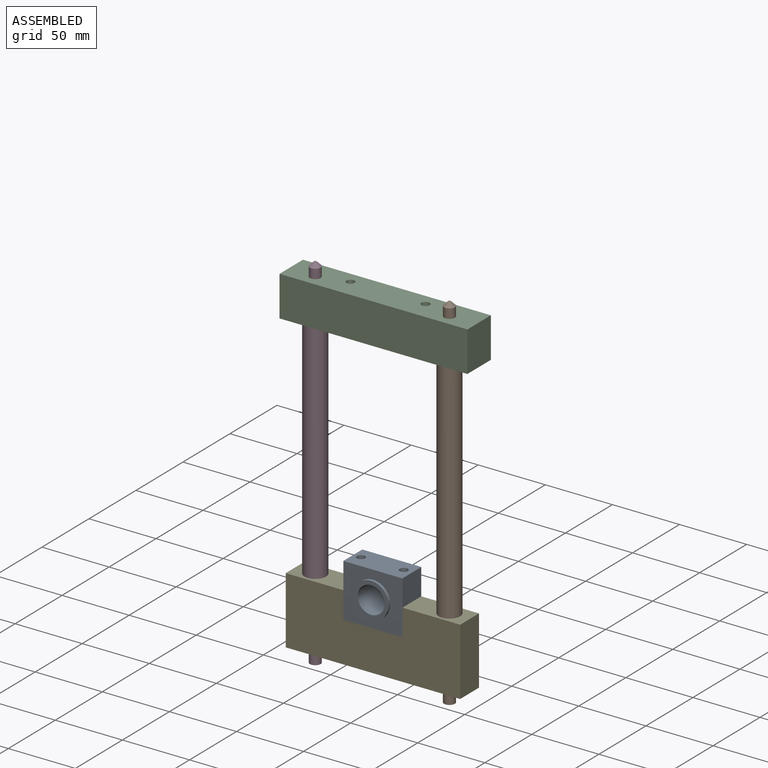
[diagram: assembled view]
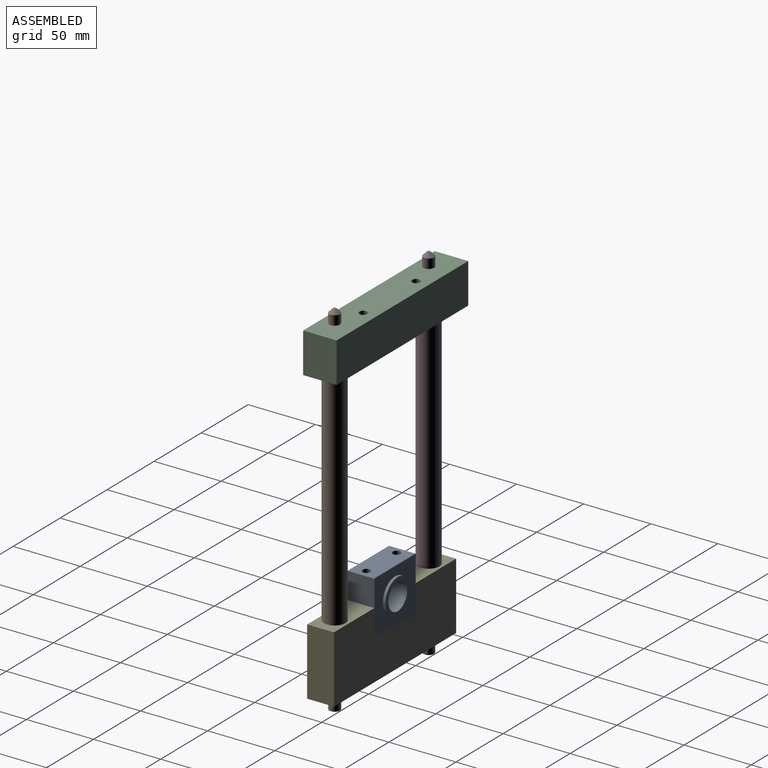
[diagram: assembled view, second angle]
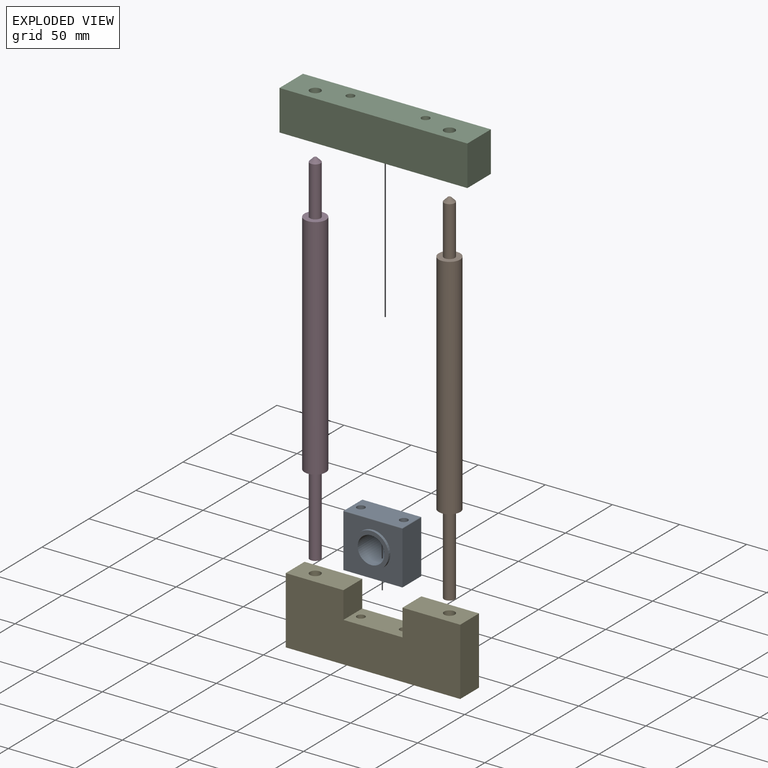
[diagram: exploded view]
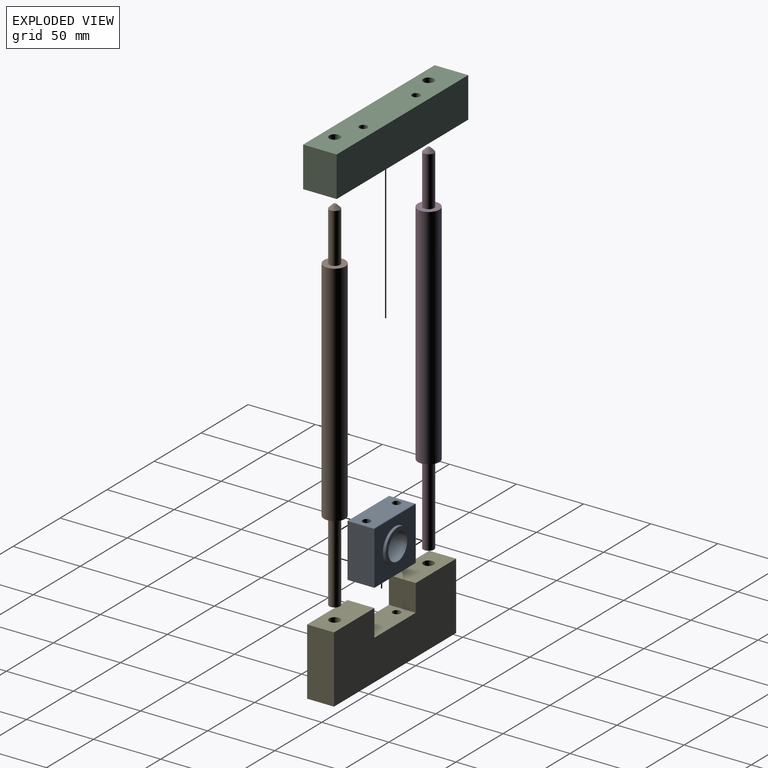
[diagram: exploded view, second angle]
ASSEMBLY  parts=5 mates=4
PART A: 17 faces, bbox 44x24x40 mm
  f0: plane 43x19mm, normal (0,0,1), area 760.5mm2, adj f7,f8,f13,f14,f15,f16
  f1: plane 44x20mm, normal (0,0,-1), area 823.5mm2, adj f2,f4,f5,f6,f7,f8
  f2: plane 39.5x20mm, normal (-1,0,0), area 790mm2, adj f1,f5,f6,f16
  f3: cylinder r=10mm len=24mm, axis (0,1,0), area 1508mm2, adj f10,f12
  f4: plane 39.5x20mm, normal (1,0,0), area 790mm2, adj f1,f5,f6,f13
  f5: plane 44x39.5mm, normal (0,-1,0), area 1207.1mm2, adj f1,f2,f4,f9,f14
  f6: plane 44x39.5mm, normal (0,1,0), area 1207.1mm2, adj f1,f2,f4,f11,f15
  f7: cylinder r=3mm len=40mm, axis (0,0,1), area 754mm2, adj f0,f1
  f8: cylinder r=3mm len=40mm, axis (0,0,1), area 754mm2, adj f0,f1
  f9: cylinder r=13mm len=26mm, axis (0,1,0), area 163.4mm2, adj f5,f10
  f10: plane 26x26mm, normal (0,-1,0), area 216.8mm2, adj f3,f9
  f11: cylinder r=13mm len=26mm, axis (0,-1,0), area 163.4mm2, adj f6,f12
  f12: plane 26x26mm, normal (0,1,0), area 216.8mm2, adj f3,f11
  f13: cylinder r=0.5mm len=20mm, axis (0,1,0), area 15.4mm2, adj f0,f4,f14,f15
  f14: cylinder r=0.5mm len=44mm, axis (1,0,0), area 34.3mm2, adj f0,f5,f13,f16
  f15: cylinder r=0.5mm len=44mm, axis (-1,0,0), area 34.3mm2, adj f0,f6,f13,f16
  f16: cylinder r=0.5mm len=20mm, axis (0,-1,0), area 15.4mm2, adj f0,f2,f14,f15
PART B: 8 faces, bbox 16x270x16 mm
  f0: cylinder r=8mm len=170mm, axis (0,1,0), area 8545.1mm2, adj f1,f2
  f1: plane 16x16mm, normal (0,-1,0), area 150.8mm2, adj f0,f5
  f2: plane 16x16mm, normal (0,1,0), area 150.8mm2, adj f0,f3
  f3: cylinder r=4mm len=37mm, axis (0,-1,0), area 929.9mm2, adj f2,f7
  f4: plane 2x2mm, normal (0,1,0), area 3.1mm2, adj f7
  f5: cylinder r=4mm len=60mm, axis (0,1,0), area 1508mm2, adj f1,f6
  f6: plane 8x8mm, normal (0,-1,0), area 50.3mm2, adj f5
  f7: cone r=1mm half-angle=45deg, axis (0,-1,0), area 66.6mm2, adj f3,f4
PART C: 10 faces, bbox 140x25x30 mm
  f0: plane 140x30mm, normal (0,1,0), area 4200mm2, adj f1,f7,f8,f9
  f1: plane 30x25mm, normal (-1,0,0), area 750mm2, adj f0,f2,f8,f9
  f2: plane 140x30mm, normal (0,-1,0), area 4200mm2, adj f1,f7,f8,f9
  f3: cylinder r=3mm len=30mm, axis (0,0,-1), area 565.5mm2, adj f8,f9
  f4: cylinder r=4mm len=30mm, axis (0,0,-1), area 754mm2, adj f8,f9
  f5: cylinder r=4mm len=30mm, axis (0,0,-1), area 754mm2, adj f8,f9
  f6: cylinder r=3mm len=30mm, axis (0,0,-1), area 565.5mm2, adj f8,f9
  f7: plane 30x25mm, normal (1,0,0), area 750mm2, adj f0,f2,f8,f9
  f8: plane 140x25mm, normal (0,0,1), area 3342.9mm2, adj f0,f1,f2,f3,f4,f5,f6,f7
  f9: plane 140x25mm, normal (0,0,-1), area 3342.9mm2, adj f0,f1,f2,f3,f4,f5,f6,f7
PART D: same geometry as B
PART E: 16 faces, bbox 130x20x50 mm
  f0: plane 44x20mm, normal (0,0,1), area 823.5mm2, adj f2,f4,f10,f11,f12,f14
  f1: plane 43x20mm, normal (0,0,1), area 809.7mm2, adj f2,f4,f6,f7,f11
  f2: plane 130x50mm, normal (0,1,0), area 5620mm2, adj f0,f1,f3,f7,f8,f9,f10,f11
  f3: plane 50x20mm, normal (-1,0,0), area 1000mm2, adj f2,f4,f8,f9
  f4: plane 130x50mm, normal (0,-1,0), area 5620mm2, adj f0,f1,f3,f7,f8,f9,f10,f11
  f5: cylinder r=4mm len=50mm, axis (0,0,-1), area 1256.6mm2, adj f8,f9
  f6: cylinder r=4mm len=50mm, axis (0,0,-1), area 1256.6mm2, adj f1,f9
  f7: plane 50x20mm, normal (1,0,0), area 1000mm2, adj f1,f2,f4,f9
  f8: plane 43x20mm, normal (0,0,1), area 809.7mm2, adj f2,f3,f4,f5,f10
  f9: plane 130x20mm, normal (0,0,-1), area 2499.5mm2, adj f2,f3,f4,f5,f6,f7
  f10: plane 20x20mm, normal (1,0,0), area 400mm2, adj f0,f2,f4,f8
  f11: plane 20x20mm, normal (-1,0,0), area 400mm2, adj f0,f1,f2,f4
  f12: cylinder r=3mm len=25mm, axis (0,0,1), area 471.2mm2, adj f0,f13
  f13: plane 6x6mm, normal (0,0,1), area 28.3mm2, adj f12
  f14: cylinder r=3mm len=25mm, axis (0,0,1), area 471.2mm2, adj f0,f15
  f15: plane 6x6mm, normal (0,0,1), area 28.3mm2, adj f14
PLACE A t=(187.87,11.15,-263.28)mm
PLACE B rot(axis=(1,0,0),90deg) t=(237.87,1.15,-93.28)mm
PLACE C t=(187.87,7.15,-93.28)mm
PLACE D rot(axis=(1,0,0),90deg) t=(137.87,1.15,-93.28)mm
PLACE E t=(187.87,1.15,-313.28)mm
MATE fastened B.f5 <-> E.f6  axis (0,0,1) through (237.87,1.15,-263.28)mm
MATE fastened B.f3 <-> C.f4  axis (0,0,-1) through (237.87,1.15,-93.28)mm
MATE fastened D.f5 <-> E.f5  axis (0,0,1) through (137.87,1.15,-263.28)mm
MATE fastened A.f1 <-> E.f0  axis (0,0,-1) through (187.87,1.15,-283.28)mm
